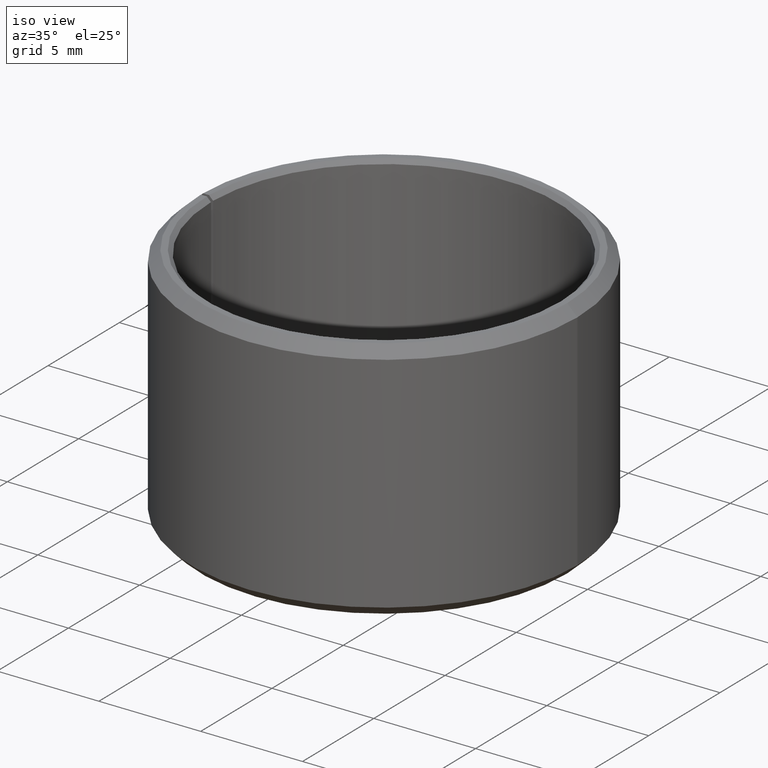
[diagram: clean part render]
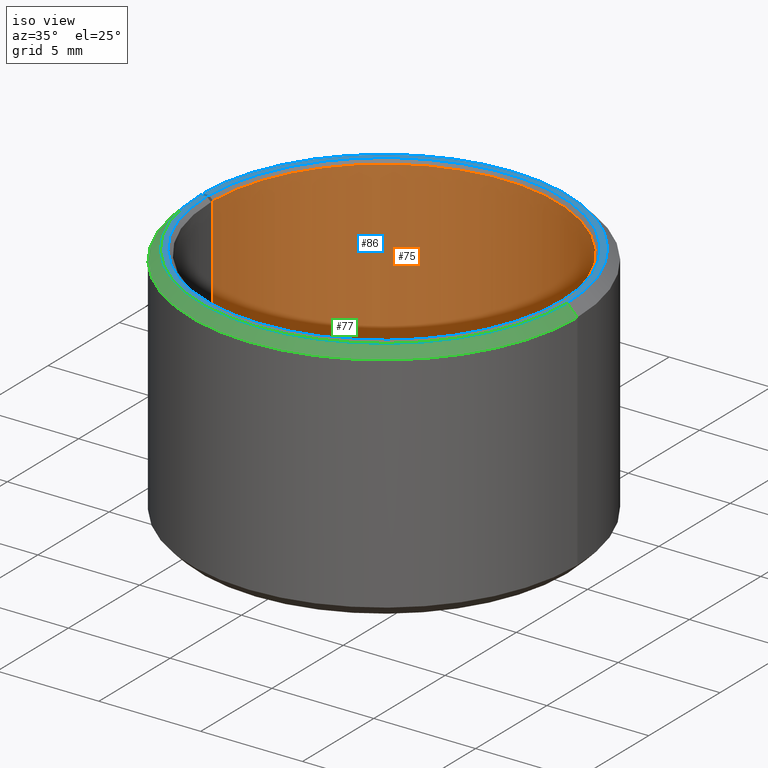
[diagram: same view with three faces highlighted in distinct colors, each labeled with its STEP entity id]
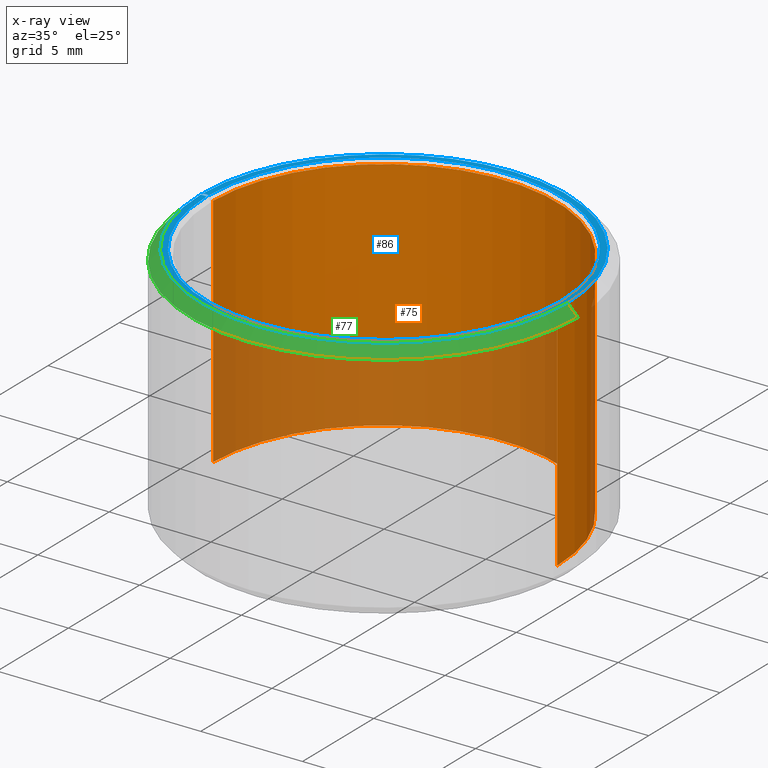
[diagram: x-ray of the same camera — body ghosted, the three highlighted faces saturated]
A machine part, iso view with three faces highlighted in distinct colors.
The next image is the same camera in x-ray (body ghosted, the three faces saturated) — at least one of them is partly hidden behind the body in this view.
Their STEP definitions:

[orange] entity #75 — the highlighted cylindrical surface (partial cylindrical patch) has radius 8.5 mm, axis along (0, -0, 1).
#75=ADVANCED_FACE('',(#92),#93,.F.);
#92=FACE_OUTER_BOUND('',#124,.T.);
#93=CYLINDRICAL_SURFACE('',#125,8.5);
#124=EDGE_LOOP('',(#156,#157,#158,#159));
#125=AXIS2_PLACEMENT_3D('',#160,#161,#162);
#156=ORIENTED_EDGE('',*,*,#280,.F.);
#157=ORIENTED_EDGE('',*,*,#281,.T.);
#158=ORIENTED_EDGE('',*,*,#282,.T.);
#159=ORIENTED_EDGE('',*,*,#283,.F.);
#160=CARTESIAN_POINT('',(4.75577053673603E-015,-6.27163115378842E-015,6.0));
#161=DIRECTION('',(5.48707263966372E-016,-6.09939603923743E-016,1.0));
#162=DIRECTION('',(-1.0,-3.21624529935327E-016,5.48707263966372E-016));
#280=EDGE_CURVE('',#318,#319,#320,.T.);
#281=EDGE_CURVE('',#318,#321,#322,.T.);
#282=EDGE_CURVE('',#321,#323,#324,.T.);
#283=EDGE_CURVE('',#319,#323,#325,.T.);
#318=VERTEX_POINT('',#380);
#319=VERTEX_POINT('',#381);
#320=LINE('',#382,#383);
#321=VERTEX_POINT('',#384);
#322=CIRCLE('',#385,8.5);
#323=VERTEX_POINT('',#386);
#324=LINE('',#387,#388);
#325=CIRCLE('',#389,8.5);
#380=CARTESIAN_POINT('',(8.50000000000001,-7.75515132562262E-015,11.8));
#381=CARTESIAN_POINT('',(8.5,-2.92170506978989E-016,0.199999999999998));
#382=CARTESIAN_POINT('',(8.50000000000001,-4.57877242861338E-015,6.0));
#383=VECTOR('',#464,1.0);
#384=CARTESIAN_POINT('',(-8.49870540882932,0.148345454716897,11.8));
#385=AXIS2_PLACEMENT_3D('',#465,#466,#467);
#386=CARTESIAN_POINT('',(-8.49870540882933,0.148345454716905,0.200000000000007));
#387=CARTESIAN_POINT('',(-8.49870540882932,0.148345454716898,11.8));
#388=VECTOR('',#468,10.0);
#389=AXIS2_PLACEMENT_3D('',#469,#470,#471);
#464=DIRECTION('',(-5.48707263966372E-016,6.09939603923743E-016,-1.0));
#465=CARTESIAN_POINT('',(7.938272667741E-015,-9.45413328479339E-015,11.8));
#466=DIRECTION('',(5.48707263966372E-016,-6.09939603923743E-016,1.0));
#467=DIRECTION('',(-1.0,-3.21624529935327E-016,5.48707263966372E-016));
#468=DIRECTION('',(-5.48105565351984E-016,6.44410894455321E-016,-1.0));
#469=CARTESIAN_POINT('',(1.57326840573107E-015,-1.97890599815829E-015,0.200000000000002));
#470=DIRECTION('',(5.48707263966372E-016,-6.09939603923743E-016,1.0));
#471=DIRECTION('',(-1.0,-3.21624529935327E-016,5.48707263966372E-016));

[blue] entity #86 — the highlighted planar face has unit normal (0, -0, 1).
#86=ADVANCED_FACE('',(#114),#115,.T.);
#114=FACE_OUTER_BOUND('',#146,.T.);
#115=PLANE('',#147);
#146=EDGE_LOOP('',(#235,#236,#237,#238,#239,#240));
#147=AXIS2_PLACEMENT_3D('',#241,#242,#243);
#235=ORIENTED_EDGE('',*,*,#312,.T.);
#236=ORIENTED_EDGE('',*,*,#285,.F.);
#237=ORIENTED_EDGE('',*,*,#313,.F.);
#238=ORIENTED_EDGE('',*,*,#314,.F.);
#239=ORIENTED_EDGE('',*,*,#288,.T.);
#240=ORIENTED_EDGE('',*,*,#311,.T.);
#241=CARTESIAN_POINT('',(-8.84999999999999,-1.20084684652056E-014,12.0));
#242=DIRECTION('',(5.48707263966372E-016,-6.09939603923743E-016,1.0));
#243=DIRECTION('',(-1.0,-3.21624529935327E-016,5.48707263966372E-016));
#285=EDGE_CURVE('',#326,#328,#329,.T.);
#288=EDGE_CURVE('',#334,#331,#335,.T.);
#311=EDGE_CURVE('',#331,#369,#371,.T.);
#312=EDGE_CURVE('',#369,#328,#372,.T.);
#313=EDGE_CURVE('',#373,#326,#374,.T.);
#314=EDGE_CURVE('',#334,#373,#375,.T.);
#326=VERTEX_POINT('',#390);
#328=VERTEX_POINT('',#393);
#329=CIRCLE('',#394,8.7);
#331=VERTEX_POINT('',#397);
#334=VERTEX_POINT('',#401);
#335=CIRCLE('',#402,9.0);
#369=VERTEX_POINT('',#448);
#371=CIRCLE('',#451,9.0);
#372=LINE('',#452,#453);
#373=VERTEX_POINT('',#454);
#374=CIRCLE('',#455,8.7);
#375=LINE('',#456,#457);
#390=CARTESIAN_POINT('',(8.70000000000001,-7.83730727640325E-015,12.0));
#393=CARTESIAN_POINT('',(-8.6986749478606,0.151835936004354,12.0));
#394=AXIS2_PLACEMENT_3D('',#473,#474,#475);
#397=CARTESIAN_POINT('',(9.00000000000001,-7.78674417239068E-015,12.0));
#401=CARTESIAN_POINT('',(-8.99999999999999,-1.18993635419958E-014,12.0));
#402=AXIS2_PLACEMENT_3D('',#478,#479,#480);
#448=CARTESIAN_POINT('',(-8.99862925640752,0.157071657935539,12.0));
#451=AXIS2_PLACEMENT_3D('',#521,#522,#523);
#452=CARTESIAN_POINT('',(-8.99862925640752,0.157071657935541,12.0));
#453=VECTOR('',#524,10.0);
#454=CARTESIAN_POINT('',(-8.69999999999999,-1.21175733884155E-014,12.0));
#455=AXIS2_PLACEMENT_3D('',#525,#526,#527);
#456=CARTESIAN_POINT('',(-8.99999999999999,-1.18993635419958E-014,12.0));
#457=VECTOR('',#528,10.0);
#473=CARTESIAN_POINT('',(8.04801412053427E-015,-9.56387473758667E-015,12.0));
#474=DIRECTION('',(5.48707263966372E-016,-6.09939603923743E-016,1.0));
#475=DIRECTION('',(-1.0,-3.21624529935328E-016,5.48707263966372E-016));
#478=CARTESIAN_POINT('',(8.04801412053427E-015,-9.56387473758667E-015,12.0));
#479=DIRECTION('',(5.48707263966372E-016,-6.09939603923743E-016,1.0));
#480=DIRECTION('',(-1.0,-3.21624529935327E-016,5.48707263966372E-016));
#521=CARTESIAN_POINT('',(8.04801412053427E-015,-9.56387473758667E-015,12.0));
#522=DIRECTION('',(5.48707263966372E-016,-6.09939603923743E-016,1.0));
#523=DIRECTION('',(-1.0,-3.21624529935327E-016,5.48707263966372E-016));
#524=DIRECTION('',(0.999847695156391,-0.0174524064372833,-5.5926860706222E-016));
#525=CARTESIAN_POINT('',(8.04801412053427E-015,-9.56387473758667E-015,12.0));
#526=DIRECTION('',(5.48707263966372E-016,-6.09939603923743E-016,1.0));
#527=DIRECTION('',(-1.0,-3.21624529935328E-016,5.48707263966372E-016));
#528=DIRECTION('',(1.0,3.21624529935327E-016,-5.48707263966372E-016));

[green] entity #77 — the highlighted conical surface has half-angle 45 deg.
#77=ADVANCED_FACE('',(#96),#97,.T.);
#96=FACE_OUTER_BOUND('',#128,.T.);
#97=CONICAL_SURFACE('',#129,9.25,0.785398163397444);
#128=EDGE_LOOP('',(#170,#171,#172,#173));
#129=AXIS2_PLACEMENT_3D('',#174,#175,#176);
#170=ORIENTED_EDGE('',*,*,#287,.F.);
#171=ORIENTED_EDGE('',*,*,#288,.F.);
#172=ORIENTED_EDGE('',*,*,#289,.F.);
#173=ORIENTED_EDGE('',*,*,#290,.T.);
#174=CARTESIAN_POINT('',(7.91083730454268E-015,-9.42669792159507E-015,11.75));
#175=DIRECTION('',(-5.48707263966372E-016,6.09939603923743E-016,-1.0));
#176=DIRECTION('',(-1.0,-3.21624529935327E-016,5.48707263966372E-016));
#287=EDGE_CURVE('',#331,#332,#333,.T.);
#288=EDGE_CURVE('',#334,#331,#335,.T.);
#289=EDGE_CURVE('',#336,#334,#337,.T.);
#290=EDGE_CURVE('',#336,#332,#338,.T.);
#331=VERTEX_POINT('',#397);
#332=VERTEX_POINT('',#398);
#333=LINE('',#399,#400);
#334=VERTEX_POINT('',#401);
#335=CIRCLE('',#402,9.0);
#336=VERTEX_POINT('',#403);
#337=LINE('',#404,#405);
#338=CIRCLE('',#406,9.5);
#397=CARTESIAN_POINT('',(9.00000000000001,-7.78674417239068E-015,12.0));
#398=CARTESIAN_POINT('',(9.50000000000001,-7.73428040017338E-015,11.5));
#399=CARTESIAN_POINT('',(9.25000000000001,-7.58446930890459E-015,11.75));
#400=VECTOR('',#477,1.0);
#401=CARTESIAN_POINT('',(-8.99999999999999,-1.18993635419958E-014,12.0));
#402=AXIS2_PLACEMENT_3D('',#478,#479,#480);
#403=CARTESIAN_POINT('',(-9.49999999999999,-1.23715498572715E-014,11.5));
#404=CARTESIAN_POINT('',(-9.49999999999999,-1.23715498572715E-014,11.5));
#405=VECTOR('',#481,9.99999999999999);
#406=AXIS2_PLACEMENT_3D('',#482,#483,#484);
#477=DIRECTION('',(0.707106781186544,5.72119710538374E-016,-0.707106781186551));
#478=CARTESIAN_POINT('',(8.04801412053427E-015,-9.56387473758667E-015,12.0));
#479=DIRECTION('',(5.48707263966372E-016,-6.09939603923743E-016,1.0));
#480=DIRECTION('',(-1.0,-3.21624529935327E-016,5.48707263966372E-016));
#481=DIRECTION('',(0.707106781186545,-1.60571741123738E-016,0.70710678118655));
#482=CARTESIAN_POINT('',(7.77366048855109E-015,-9.28952110560348E-015,11.5));
#483=DIRECTION('',(5.48707263966372E-016,-6.09939603923743E-016,1.0));
#484=DIRECTION('',(-1.0,-3.21624529935327E-016,5.48707263966372E-016));